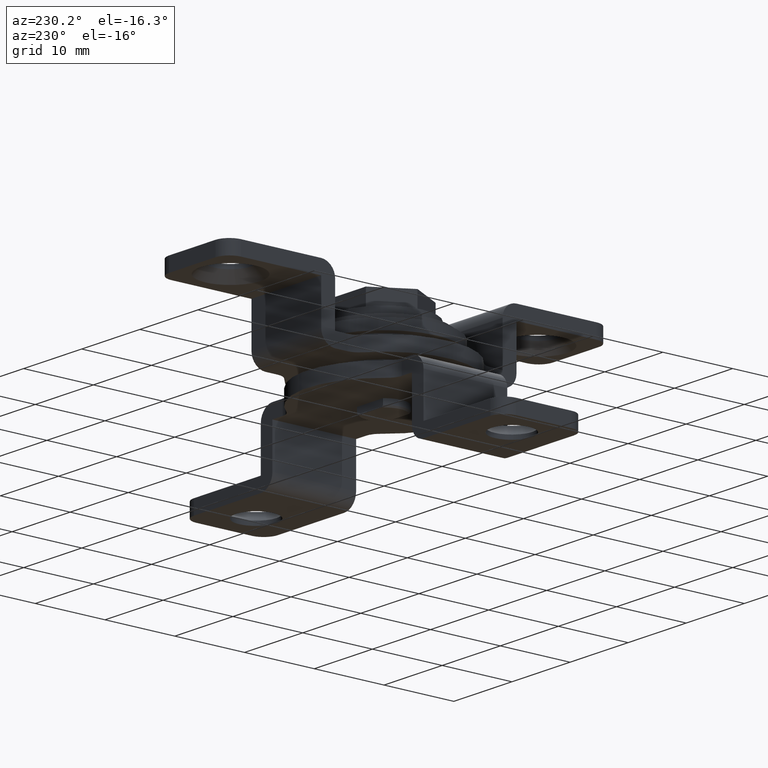
[diagram: clean part render]
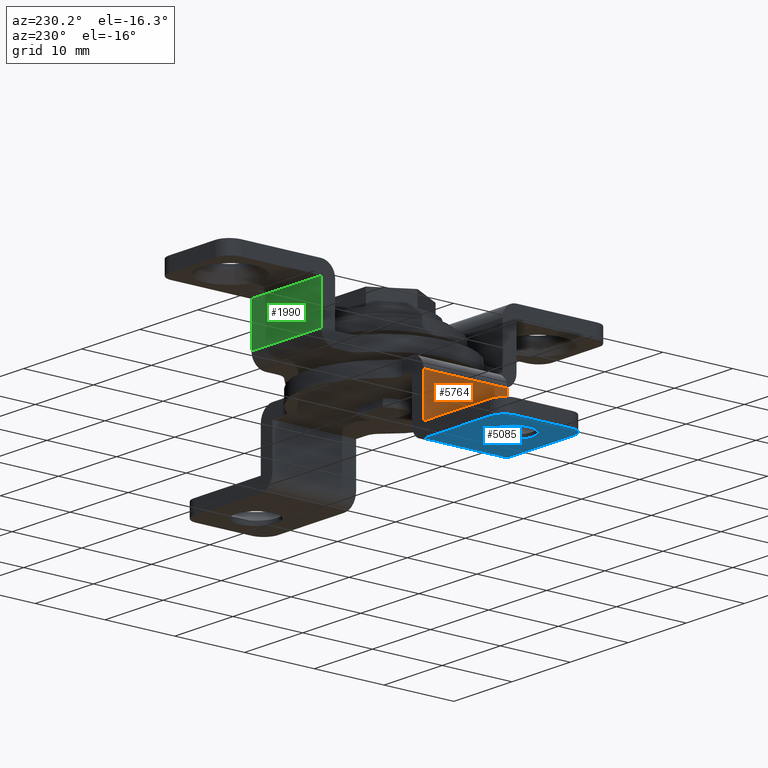
[diagram: same view with three faces highlighted in distinct colors, each labeled with its STEP entity id]
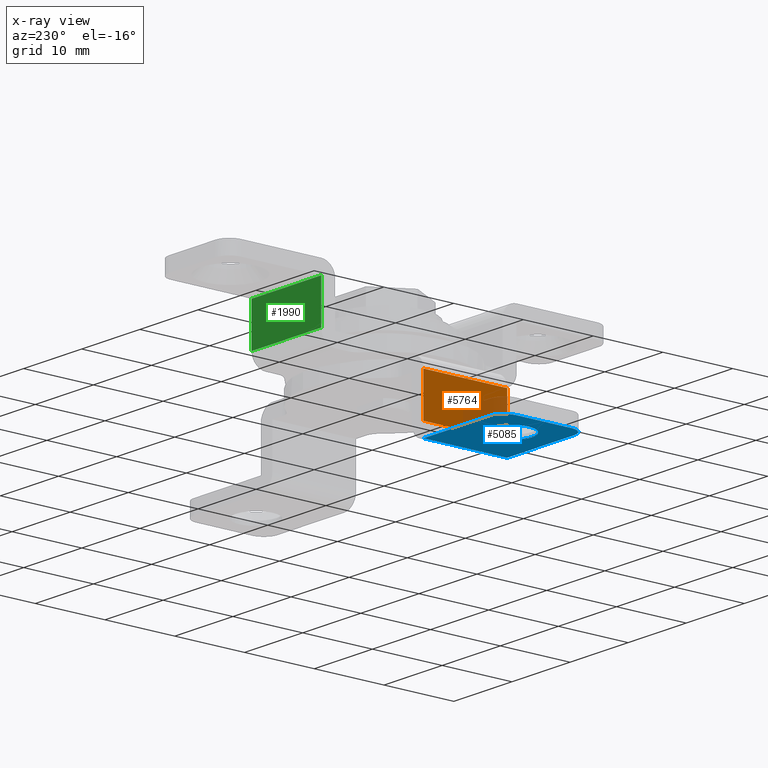
[diagram: x-ray of the same camera — body ghosted, the three highlighted faces saturated]
A machine part, auxiliary view with three faces highlighted in distinct colors.
The next image is the same camera in x-ray (body ghosted, the three faces saturated) — at least one of them is partly hidden behind the body in this view.
Their STEP definitions:

[orange] entity #5764 — the highlighted face is a freeform B-spline surface patch.
#5093=CARTESIAN_POINT('',(-14.0,6.0,2.0));
#5094=VERTEX_POINT('',#5093);
#5129=CARTESIAN_POINT('',(-14.0,-6.0,2.0));
#5130=VERTEX_POINT('',#5129);
#5136=CARTESIAN_POINT('',(-14.0,6.0,2.0));
#5137=CARTESIAN_POINT('',(-14.0,-6.0,2.0));
#5138=QUASI_UNIFORM_CURVE('',1,(#5136,#5137),.UNSPECIFIED.,.F.,.U.);
#5139=EDGE_CURVE('',#5094,#5130,#5138,.T.);
#5700=CARTESIAN_POINT('',(-14.0,-6.0,8.0));
#5701=VERTEX_POINT('',#5700);
#5722=CARTESIAN_POINT('',(-14.0,6.0,8.0));
#5723=VERTEX_POINT('',#5722);
#5737=CARTESIAN_POINT('',(-14.0,6.0,8.0));
#5738=CARTESIAN_POINT('',(-14.0,-6.0,8.0));
#5739=QUASI_UNIFORM_CURVE('',1,(#5737,#5738),.UNSPECIFIED.,.F.,.U.);
#5740=EDGE_CURVE('',#5723,#5701,#5739,.T.);
#5745=CARTESIAN_POINT('',(-14.0,-6.599399976741672,8.299699988370836));
#5746=CARTESIAN_POINT('',(-14.0,-6.599399976741672,1.700299850696624));
#5747=CARTESIAN_POINT('',(-14.0,6.599400298606754,8.299699988370836));
#5748=CARTESIAN_POINT('',(-14.0,6.599400298606754,1.700299850696624));
#5749=B_SPLINE_SURFACE_WITH_KNOTS('',1,1,((#5745,#5747),(#5746,#5748)),.UNSPECIFIED.,.F.,.F.,.U.,(2,2),(2,2),(0.0,6.599400137674213),(0.0,13.198800275348431),.UNSPECIFIED.);
#5750=CARTESIAN_POINT('',(-14.0,-6.0,2.0));
#5751=CARTESIAN_POINT('',(-14.0,-6.0,8.0));
#5752=QUASI_UNIFORM_CURVE('',1,(#5750,#5751),.UNSPECIFIED.,.F.,.U.);
#5753=EDGE_CURVE('',#5130,#5701,#5752,.T.);
#5754=ORIENTED_EDGE('',*,*,#5753,.T.);
#5755=ORIENTED_EDGE('',*,*,#5740,.F.);
#5756=CARTESIAN_POINT('',(-14.0,6.0,2.0));
#5757=CARTESIAN_POINT('',(-14.0,6.0,8.0));
#5758=QUASI_UNIFORM_CURVE('',1,(#5756,#5757),.UNSPECIFIED.,.F.,.U.);
#5759=EDGE_CURVE('',#5094,#5723,#5758,.T.);
#5760=ORIENTED_EDGE('',*,*,#5759,.F.);
#5761=ORIENTED_EDGE('',*,*,#5139,.T.);
#5762=EDGE_LOOP('',(#5754,#5755,#5760,#5761));
#5763=FACE_OUTER_BOUND('',#5762,.T.);
#5764=ADVANCED_FACE('',(#5763),#5749,.F.);

[blue] entity #5085 — the highlighted face is a freeform B-spline surface patch.
#4647=CARTESIAN_POINT('',(-24.103585542508231,1.996228203371688,1.734723E-017));
#4648=VERTEX_POINT('',#4647);
#4654=CARTESIAN_POINT('',(-21.999999429968330,2.899999999999944,0.0));
#4655=VERTEX_POINT('',#4654);
#4656=CARTESIAN_POINT('',(-24.103585542508231,1.996228203371688,1.734723E-017));
#4657=CARTESIAN_POINT('',(-23.892754338956689,2.218675876904433,1.560861E-017));
#4658=CARTESIAN_POINT('',(-23.517965704860121,2.505005289168297,1.251792E-017));
#4659=CARTESIAN_POINT('',(-22.796664564202970,2.820333986993765,6.569704E-018));
#4660=CARTESIAN_POINT('',(-22.318752331286849,2.900228046689785,2.628598E-018));
#4661=CARTESIAN_POINT('',(-21.999999429968330,2.899999999999944,0.0));
#4662=B_SPLINE_CURVE_WITH_KNOTS('',3,(#4656,#4657,#4658,#4659,#4660,#4661),.UNSPECIFIED.,.F.,.U.,(4,1,1,4),(0.000000016054025,0.919373280367217,1.397439468365432,2.353592733274274),.UNSPECIFIED.);
#4663=EDGE_CURVE('',#4648,#4655,#4662,.T.);
#4665=CARTESIAN_POINT('',(-19.100000000000001,0.0,0.0));
#4666=VERTEX_POINT('',#4665);
#4667=CARTESIAN_POINT('',(-21.999999429968330,2.899999999999944,0.0));
#4668=CARTESIAN_POINT('',(-21.715278153068830,2.900124921104712,0.0));
#4669=CARTESIAN_POINT('',(-21.264569761215760,2.833063877372576,0.0));
#4670=CARTESIAN_POINT('',(-20.722866115832701,2.616375357006723,0.0));
#4671=CARTESIAN_POINT('',(-20.282713586072092,2.356256680794286,0.0));
#4672=CARTESIAN_POINT('',(-19.912194582394640,2.036630704343056,0.0));
#4673=CARTESIAN_POINT('',(-19.570297464557161,1.609425356031104,0.0));
#4674=CARTESIAN_POINT('',(-19.305860903537269,1.129068675503919,0.0));
#4675=CARTESIAN_POINT('',(-19.136127300579250,0.569407829426479,0.0));
#4676=CARTESIAN_POINT('',(-19.099984450263811,0.177938460136940,0.0));
#4677=CARTESIAN_POINT('',(-19.100000000000001,0.0,0.0));
#4678=B_SPLINE_CURVE_WITH_KNOTS('',3,(#4667,#4668,#4669,#4670,#4671,#4672,#4673,#4674,#4675,#4676,#4677),.UNSPECIFIED.,.F.,.U.,(4,1,1,1,1,1,1,1,4),(0.000000059371839,0.854120546942987,1.352366635010094,1.743852418775190,2.384426823718683,2.811485519163117,3.380914111515051,4.021520923590099,4.555337609059487),.UNSPECIFIED.);
#4679=EDGE_CURVE('',#4655,#4666,#4678,.T.);
#4681=CARTESIAN_POINT('',(-19.896414457491769,-1.996228203371698,-1.647987E-017));
#4682=VERTEX_POINT('',#4681);
#4683=CARTESIAN_POINT('',(-19.100000000000001,0.0,0.0));
#4684=CARTESIAN_POINT('',(-19.099966028708391,-0.206415636955881,-1.704065E-018));
#4685=CARTESIAN_POINT('',(-19.140574562360751,-0.584820297367713,-4.827987E-018));
#4686=CARTESIAN_POINT('',(-19.298347956696510,-1.090363597299082,-9.001503E-018));
#4687=CARTESIAN_POINT('',(-19.537286517179531,-1.562404627922300,-1.289844E-017));
#4688=CARTESIAN_POINT('',(-19.754301860457659,-1.846524211218074,-1.524399E-017));
#4689=CARTESIAN_POINT('',(-19.896414457491769,-1.996228203371698,-1.647987E-017));
#4690=B_SPLINE_CURVE_WITH_KNOTS('',3,(#4683,#4684,#4685,#4686,#4687,#4688,#4689),.UNSPECIFIED.,.F.,.U.,(4,1,1,1,4),(0.000000015137210,0.619241746075592,1.135265660462052,1.582504019632507,2.201745750563754),.UNSPECIFIED.);
#4691=EDGE_CURVE('',#4666,#4682,#4690,.T.);
#4799=CARTESIAN_POINT('',(-22.000000570031609,-2.899999999999944,0.0));
#4800=VERTEX_POINT('',#4799);
#4801=CARTESIAN_POINT('',(-19.896414457491769,-1.996228203371698,-1.647987E-017));
#4802=CARTESIAN_POINT('',(-20.056699926261398,-2.165213167670100,-1.522417E-017));
#4803=CARTESIAN_POINT('',(-20.418289108191029,-2.464211218217747,-1.239141E-017));
#4804=CARTESIAN_POINT('',(-21.129763999335580,-2.808121085350234,-6.817591E-018));
#4805=CARTESIAN_POINT('',(-21.681263350477220,-2.900198088265938,-2.497045E-018));
#4806=CARTESIAN_POINT('',(-22.000000570031609,-2.899999999999944,0.0));
#4807=B_SPLINE_CURVE_WITH_KNOTS('',3,(#4801,#4802,#4803,#4804,#4805,#4806),.UNSPECIFIED.,.F.,.U.,(4,1,1,4),(0.000000016054286,0.698724740143376,1.397439468365333,2.353592733274224),.UNSPECIFIED.);
#4808=EDGE_CURVE('',#4682,#4800,#4807,.T.);
#4810=CARTESIAN_POINT('',(-24.899999999999999,0.0,0.0));
#4811=VERTEX_POINT('',#4810);
#4812=CARTESIAN_POINT('',(-22.000000570031609,-2.899999999999944,0.0));
#4813=CARTESIAN_POINT('',(-22.189805355621829,-2.900022382406260,0.0));
#4814=CARTESIAN_POINT('',(-22.557537932868470,-2.863761034134050,0.0));
#4815=CARTESIAN_POINT('',(-23.151481573871418,-2.687648175151261,0.0));
#4816=CARTESIAN_POINT('',(-23.684080616340250,-2.390207757552369,0.0));
#4817=CARTESIAN_POINT('',(-24.083465591304439,-2.032591285406018,0.0));
#4818=CARTESIAN_POINT('',(-24.394801983632700,-1.657958304305848,0.0));
#4819=CARTESIAN_POINT('',(-24.637575691563860,-1.247247294977988,0.0));
#4820=CARTESIAN_POINT('',(-24.846141193876811,-0.664274486649950,0.0));
#4821=CARTESIAN_POINT('',(-24.900081385981679,-0.249125933422952,0.0));
#4822=CARTESIAN_POINT('',(-24.899999999999999,0.0,0.0));
#4823=B_SPLINE_CURVE_WITH_KNOTS('',3,(#4812,#4813,#4814,#4815,#4816,#4817,#4818,#4819,#4820,#4821,#4822),.UNSPECIFIED.,.F.,.U.,(4,1,1,1,1,1,1,1,4),(0.000000059377512,0.569413536295074,1.103245745755515,1.850619643156310,2.384426823722618,2.704718619951163,3.309737111236585,3.807985599003820,4.555337609059528),.UNSPECIFIED.);
#4824=EDGE_CURVE('',#4800,#4811,#4823,.T.);
#4826=CARTESIAN_POINT('',(-24.899999999999999,0.0,0.0));
#4827=CARTESIAN_POINT('',(-24.900110734846539,0.275232937637136,2.391776E-018));
#4828=CARTESIAN_POINT('',(-24.839121660663640,0.699450513850938,6.078229E-018));
#4829=CARTESIAN_POINT('',(-24.578561522592089,1.387910907260322,1.206095E-017));
#4830=CARTESIAN_POINT('',(-24.316873827687871,1.771745669616647,1.539648E-017));
#4831=CARTESIAN_POINT('',(-24.103585542508231,1.996228203371688,1.734723E-017));
#4832=B_SPLINE_CURVE_WITH_KNOTS('',3,(#4826,#4827,#4828,#4829,#4830,#4831),.UNSPECIFIED.,.F.,.U.,(4,1,1,4),(0.000000015134944,0.825658906169220,1.272877981392525,2.201745750563774),.UNSPECIFIED.);
#4833=EDGE_CURVE('',#4811,#4648,#4832,.T.);
#4998=CARTESIAN_POINT('',(-27.500000000000000,4.0,0.0));
#4999=VERTEX_POINT('',#4998);
#5005=CARTESIAN_POINT('',(-27.500000000000000,-4.0,0.0));
#5006=VERTEX_POINT('',#5005);
#5007=CARTESIAN_POINT('',(-27.500000000000000,4.0,0.0));
#5008=CARTESIAN_POINT('',(-27.500000000000000,-4.0,0.0));
#5009=QUASI_UNIFORM_CURVE('',1,(#5007,#5008),.UNSPECIFIED.,.F.,.U.);
#5010=EDGE_CURVE('',#4999,#5006,#5009,.T.);
#5020=CARTESIAN_POINT('',(-28.174324973834381,-6.599399976741672,0.0));
#5021=CARTESIAN_POINT('',(-13.325674664067400,-6.599399976741672,0.0));
#5022=CARTESIAN_POINT('',(-28.174324973834381,6.599400298606754,0.0));
#5023=CARTESIAN_POINT('',(-13.325674664067400,6.599400298606754,0.0));
#5024=B_SPLINE_SURFACE_WITH_KNOTS('',1,1,((#5020,#5022),(#5021,#5023)),.UNSPECIFIED.,.F.,.F.,.U.,(2,2),(2,2),(0.0,14.848650309766979),(0.0,13.198800275348431),.UNSPECIFIED.);
#5025=ORIENTED_EDGE('',*,*,#5010,.F.);
#5026=CARTESIAN_POINT('',(-25.500000000000000,6.0,0.0));
#5027=VERTEX_POINT('',#5026);
#5028=CARTESIAN_POINT('',(-27.500000000000000,4.0,0.0));
#5029=CARTESIAN_POINT('',(-27.500045436509168,4.163626954845161,0.0));
#5030=CARTESIAN_POINT('',(-27.466670407309419,4.433584486532237,0.0));
#5031=CARTESIAN_POINT('',(-27.340795791461471,4.806886686606976,0.0));
#5032=CARTESIAN_POINT('',(-27.141056197960172,5.175244659971454,0.0));
#5033=CARTESIAN_POINT('',(-26.854487070929480,5.495373389258078,0.0));
#5034=CARTESIAN_POINT('',(-26.505324470998890,5.741182208679439,0.0));
#5035=CARTESIAN_POINT('',(-26.080775692559040,5.938868032152395,0.0));
#5036=CARTESIAN_POINT('',(-25.729100938372451,6.000172069322258,0.0));
#5037=CARTESIAN_POINT('',(-25.500000000000000,6.0,0.0));
#5038=B_SPLINE_CURVE_WITH_KNOTS('',3,(#5028,#5029,#5030,#5031,#5032,#5033,#5034,#5035,#5036,#5037),.UNSPECIFIED.,.F.,.U.,(4,1,1,1,1,1,1,4),(0.000000065932414,0.490869692235512,0.809947736891947,1.178115859327398,1.742605951160186,2.086221841702020,2.454386493643051,3.141612365755725),.UNSPECIFIED.);
#5039=EDGE_CURVE('',#4999,#5027,#5038,.T.);
#5040=ORIENTED_EDGE('',*,*,#5039,.T.);
#5041=CARTESIAN_POINT('',(-14.0,6.0,0.0));
#5042=VERTEX_POINT('',#5041);
#5043=CARTESIAN_POINT('',(-14.0,6.0,0.0));
#5044=CARTESIAN_POINT('',(-25.500000000000000,6.0,0.0));
#5045=QUASI_UNIFORM_CURVE('',1,(#5043,#5044),.UNSPECIFIED.,.F.,.U.);
#5046=EDGE_CURVE('',#5042,#5027,#5045,.T.);
#5047=ORIENTED_EDGE('',*,*,#5046,.F.);
#5048=CARTESIAN_POINT('',(-14.0,-6.0,0.0));
#5049=VERTEX_POINT('',#5048);
#5050=CARTESIAN_POINT('',(-14.0,6.0,0.0));
#5051=CARTESIAN_POINT('',(-14.0,-6.0,0.0));
#5052=QUASI_UNIFORM_CURVE('',1,(#5050,#5051),.UNSPECIFIED.,.F.,.U.);
#5053=EDGE_CURVE('',#5042,#5049,#5052,.T.);
#5054=ORIENTED_EDGE('',*,*,#5053,.T.);
#5055=CARTESIAN_POINT('',(-25.500000000000000,-6.0,0.0));
#5056=VERTEX_POINT('',#5055);
#5057=CARTESIAN_POINT('',(-14.0,-6.0,0.0));
#5058=CARTESIAN_POINT('',(-25.500000000000000,-6.0,0.0));
#5059=QUASI_UNIFORM_CURVE('',1,(#5057,#5058),.UNSPECIFIED.,.F.,.U.);
#5060=EDGE_CURVE('',#5049,#5056,#5059,.T.);
#5061=ORIENTED_EDGE('',*,*,#5060,.T.);
#5062=CARTESIAN_POINT('',(-25.500000000000000,-6.0,0.0));
#5063=CARTESIAN_POINT('',(-25.630899105047899,-6.000015001904922,0.0));
#5064=CARTESIAN_POINT('',(-25.900878139169119,-5.973409880614645,0.0));
#5065=CARTESIAN_POINT('',(-26.254428709196411,-5.863781606045805,0.0));
#5066=CARTESIAN_POINT('',(-26.633115200694299,-5.667362913351990,0.0));
#5067=CARTESIAN_POINT('',(-26.944473929239830,-5.408599346249641,0.0));
#5068=CARTESIAN_POINT('',(-27.237863506173721,-5.023021035305609,0.0));
#5069=CARTESIAN_POINT('',(-27.444119405695840,-4.572647721713721,0.0));
#5070=CARTESIAN_POINT('',(-27.500089988674500,-4.196359144347175,0.0));
#5071=CARTESIAN_POINT('',(-27.500000000000000,-4.0,0.0));
#5072=B_SPLINE_CURVE_WITH_KNOTS('',3,(#5062,#5063,#5064,#5065,#5066,#5067,#5068,#5069,#5070,#5071),.UNSPECIFIED.,.F.,.U.,(4,1,1,1,1,1,1,4),(0.000000065954841,0.392698220192148,0.809947736908071,1.104479749260749,1.668964169029679,2.012585521807756,2.552561698461400,3.141612365755624),.UNSPECIFIED.);
#5073=EDGE_CURVE('',#5056,#5006,#5072,.T.);
#5074=ORIENTED_EDGE('',*,*,#5073,.T.);
#5075=EDGE_LOOP('',(#5025,#5040,#5047,#5054,#5061,#5074));
#5076=FACE_OUTER_BOUND('',#5075,.T.);
#5077=ORIENTED_EDGE('',*,*,#4679,.F.);
#5078=ORIENTED_EDGE('',*,*,#4663,.F.);
#5079=ORIENTED_EDGE('',*,*,#4833,.F.);
#5080=ORIENTED_EDGE('',*,*,#4824,.F.);
#5081=ORIENTED_EDGE('',*,*,#4808,.F.);
#5082=ORIENTED_EDGE('',*,*,#4691,.F.);
#5083=EDGE_LOOP('',(#5077,#5078,#5079,#5080,#5081,#5082));
#5084=FACE_BOUND('',#5083,.T.);
#5085=ADVANCED_FACE('',(#5076,#5084),#5024,.F.);

[green] entity #1990 — the highlighted face is a freeform B-spline surface patch.
#1930=CARTESIAN_POINT('',(-6.000000000000230,14.0,18.999999999961851));
#1931=VERTEX_POINT('',#1930);
#1940=CARTESIAN_POINT('',(6.0,14.0,18.999999999961851));
#1941=VERTEX_POINT('',#1940);
#1947=CARTESIAN_POINT('',(-6.000000000000230,14.0,18.999999999961851));
#1948=CARTESIAN_POINT('',(6.0,14.0,18.999999999961851));
#1949=QUASI_UNIFORM_CURVE('',1,(#1947,#1948),.UNSPECIFIED.,.F.,.U.);
#1950=EDGE_CURVE('',#1931,#1941,#1949,.T.);
#1963=CARTESIAN_POINT('',(-6.599399976741914,14.0,19.299699988332691));
#1964=CARTESIAN_POINT('',(-6.599399976741914,14.0,12.700299850658549));
#1965=CARTESIAN_POINT('',(6.599400298606765,14.0,19.299699988332691));
#1966=CARTESIAN_POINT('',(6.599400298606765,14.0,12.700299850658549));
#1967=B_SPLINE_SURFACE_WITH_KNOTS('',1,1,((#1963,#1965),(#1964,#1966)),.UNSPECIFIED.,.F.,.F.,.U.,(2,2),(2,2),(0.0,6.599400137674145),(0.0,13.198800275348679),.UNSPECIFIED.);
#1968=CARTESIAN_POINT('',(6.0,14.0,12.999999999961920));
#1969=VERTEX_POINT('',#1968);
#1970=CARTESIAN_POINT('',(6.0,14.0,18.999999999961851));
#1971=CARTESIAN_POINT('',(6.0,14.0,12.999999999961920));
#1972=QUASI_UNIFORM_CURVE('',1,(#1970,#1971),.UNSPECIFIED.,.F.,.U.);
#1973=EDGE_CURVE('',#1941,#1969,#1972,.T.);
#1974=ORIENTED_EDGE('',*,*,#1973,.T.);
#1975=CARTESIAN_POINT('',(-6.000000000000230,14.0,12.999999999961920));
#1976=VERTEX_POINT('',#1975);
#1977=CARTESIAN_POINT('',(-6.000000000000230,14.0,12.999999999961920));
#1978=CARTESIAN_POINT('',(6.0,14.0,12.999999999961920));
#1979=QUASI_UNIFORM_CURVE('',1,(#1977,#1978),.UNSPECIFIED.,.F.,.U.);
#1980=EDGE_CURVE('',#1976,#1969,#1979,.T.);
#1981=ORIENTED_EDGE('',*,*,#1980,.F.);
#1982=CARTESIAN_POINT('',(-6.000000000000230,14.0,18.999999999961851));
#1983=CARTESIAN_POINT('',(-6.000000000000230,14.0,12.999999999961920));
#1984=QUASI_UNIFORM_CURVE('',1,(#1982,#1983),.UNSPECIFIED.,.F.,.U.);
#1985=EDGE_CURVE('',#1931,#1976,#1984,.T.);
#1986=ORIENTED_EDGE('',*,*,#1985,.F.);
#1987=ORIENTED_EDGE('',*,*,#1950,.T.);
#1988=EDGE_LOOP('',(#1974,#1981,#1986,#1987));
#1989=FACE_OUTER_BOUND('',#1988,.T.);
#1990=ADVANCED_FACE('',(#1989),#1967,.F.);